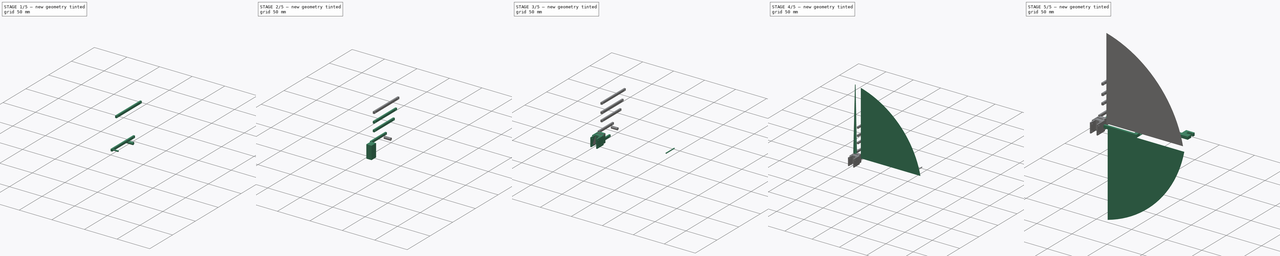
[diagram: build sequence overview — one tinted view per stage of 5, left to right]
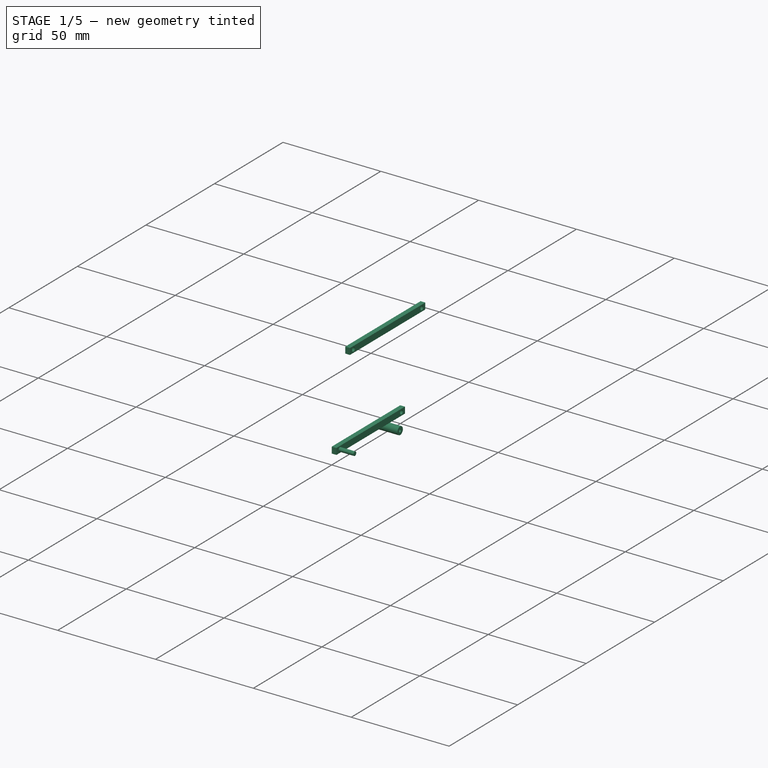
[diagram: stage 1 of 5 — iso view after this stage's code; geometry added in this stage tinted green]
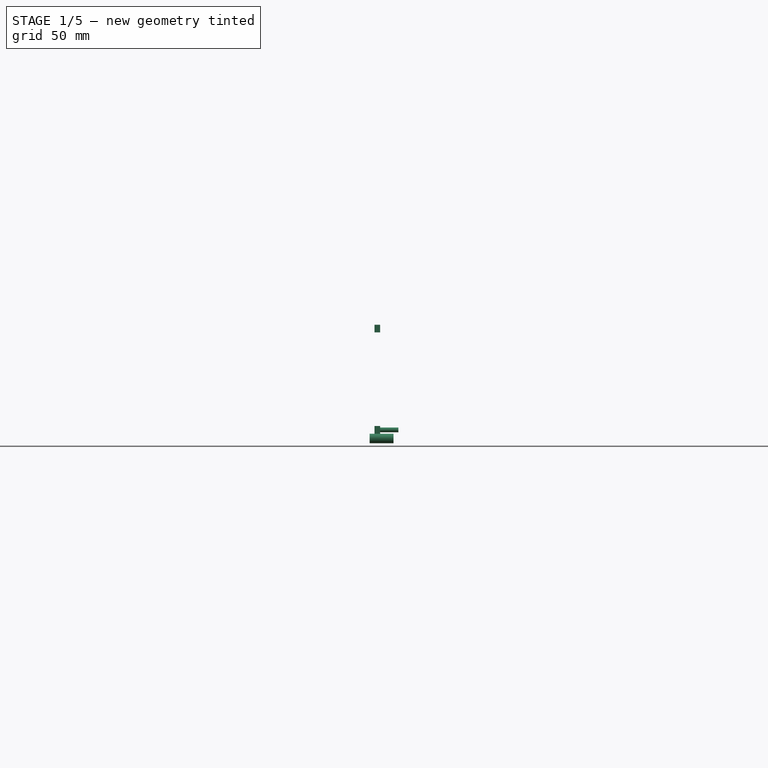
[diagram: stage 1 of 5 — front view after this stage's code; geometry added in this stage tinted green]
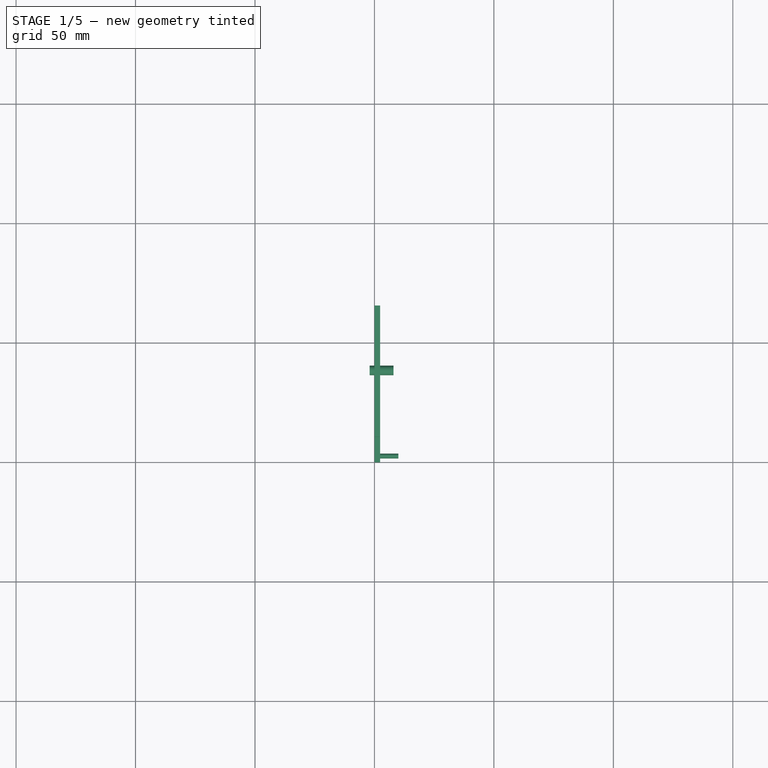
[diagram: stage 1 of 5 — top view after this stage's code; geometry added in this stage tinted green]
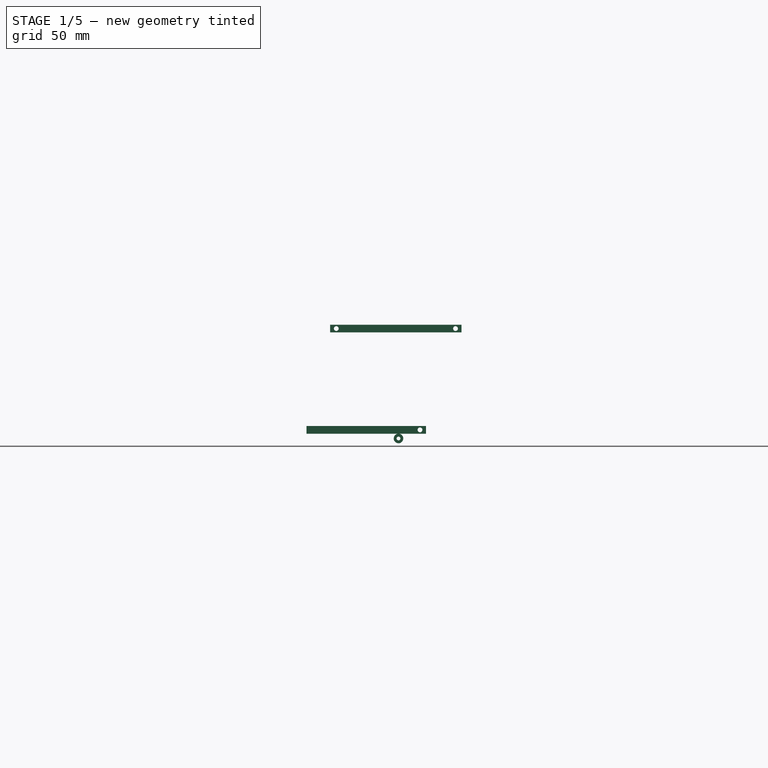
[diagram: stage 1 of 5 — right view after this stage's code; geometry added in this stage tinted green]
FCSTD DOCUMENT  (FreeCAD 0.21R33675 (Git))
Label: stem
License: All rights reserved
LicenseURL: http://en.wikipedia.org/wiki/All_rights_reserved
objects: Part::Cut×24, Part::Cylinder×22, Part::Box×7, Sketcher::SketchObject×5, PartDesign::Body×5, PartDesign::Pad×4, Part::Cone×2, Part::Fuse×2
note: 75 computed .brp shape members not serialized (recipe doc carries the construction recipe); baked Part::Feature solids carry a one-line shape summary decoded from their .brp

FEATURE [Part::Box] Box007  label="Cube007"
  AttacherType = Attacher::AttachEngine3D
  Height = 3.2
  Length = 2.4
  Width = 50
FEATURE [Part::Cylinder] Cylinder021  label="lowerhole001"
  Angle = 360
  AttacherType = Attacher::AttachEngine3D
  FirstAngle = 0
  Height = 10
  Placement = pos=(-1,47.5,1.6) rot=(0,1,0;1.5708rad)
  Radius = 1
  SecondAngle = 0
FEATURE [Part::Cut] Cut026
  Base = -> Box007
  Tool = -> Cylinder021
FEATURE [Part::Cylinder] Cylinder022  label="upperhole001"
  Angle = 360
  AttacherType = Attacher::AttachEngine3D
  FirstAngle = 0
  Height = 10
  Placement = pos=(0,2.6,1.6) rot=(0,1,0;1.5708rad)
  Radius = 1
  SecondAngle = 0
FEATURE [Part::Box] Box008  label="Cube008"
  AttacherType = Attacher::AttachEngine3D
  Height = 3.2
  Length = 2.4
  Width = 55
FEATURE [Part::Cylinder] Cylinder023  label="lowerhole002"
  Angle = 360
  AttacherType = Attacher::AttachEngine3D
  FirstAngle = 0
  Height = 10
  Placement = pos=(-1,52.5,1.6) rot=(0,1,0;1.5708rad)
  Radius = 1
  SecondAngle = 0
FEATURE [Part::Cut] Cut028
  Base = -> Box008
  Tool = -> Cylinder023
FEATURE [Part::Cylinder] Cylinder024  label="upperhole002"
  Angle = 360
  AttacherType = Attacher::AttachEngine3D
  FirstAngle = 0
  Height = 10
  Placement = pos=(0,2.6,1.6) rot=(0,1,0;1.5708rad)
  Radius = 1
  SecondAngle = 0
FEATURE [Part::Cut] Cut029  label="crank-pison-xxl"
  Base = -> Cut028
  Placement = pos=(0,9.86,42.41) rot=(0,0,1;0rad)
  Tool = -> Cylinder024
FEATURE [Part::Cylinder] Cylinder027  label="crank-flange"
  Angle = 360
  AttacherType = Attacher::AttachEngine3D
  FirstAngle = 0
  Height = 10
  Placement = pos=(8,38.5,-2) rot=(0,-1,0;1.5708rad)
  Radius = 2
  SecondAngle = 0
FEATURE [Part::Cylinder] Cylinder028  label="crank-lange-hole"
  Angle = 360
  AttacherType = Attacher::AttachEngine3D
  FirstAngle = 0
  Height = 24
  Placement = pos=(16.66,38.5,-2) rot=(0,-1,0;1.5708rad)
  Radius = 0.8
  SecondAngle = 0
FEATURE [Part::Cut] Cut032  label="crank-flange001"
  Base = -> Cylinder027
  Tool = -> Cylinder028
FEATURE [Sketcher::SketchObject] Sketch006
  FullyConstrained = true
  MapMode = 5
  Placement = pos=(0,0,0) rot=(1,0,0;1.5708rad)
  Support = -> [XZ_Plane006]
FEATURE [PartDesign::Body] Body006  label="Body"
  Group = -> [Sketch006]
  Origin = -> Origin006
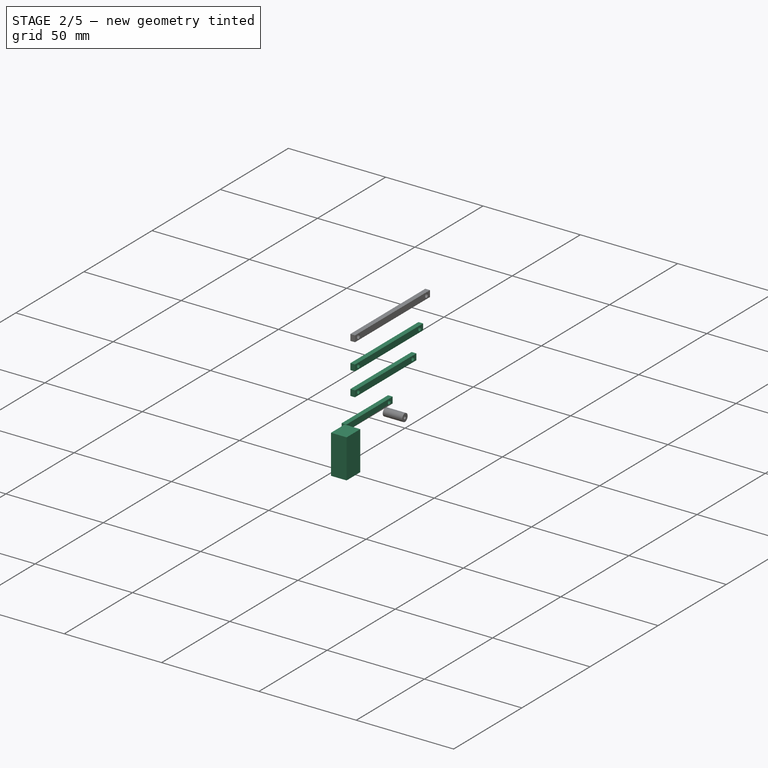
[diagram: stage 2 of 5 — iso view after this stage's code; geometry added in this stage tinted green]
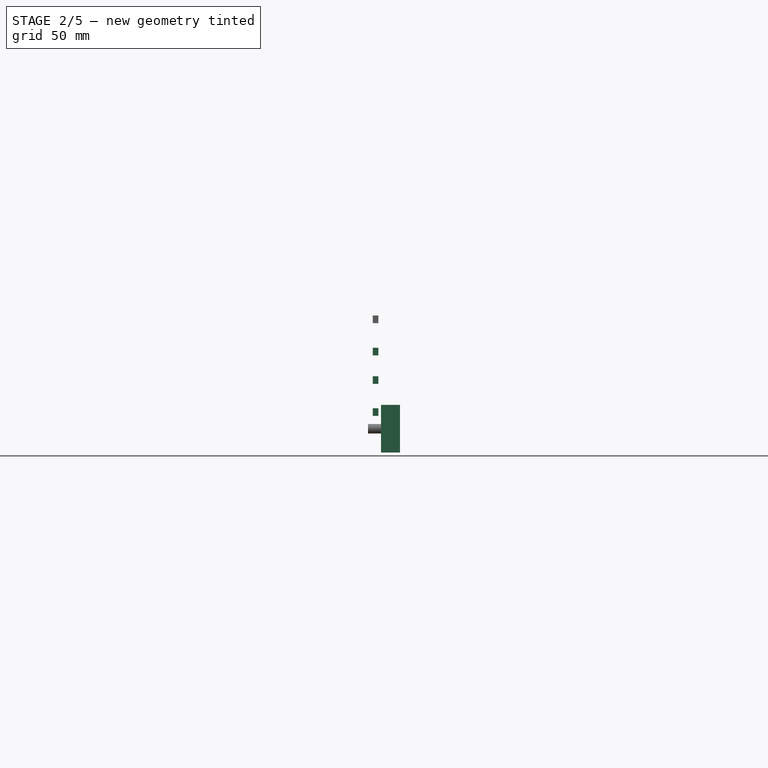
[diagram: stage 2 of 5 — front view after this stage's code; geometry added in this stage tinted green]
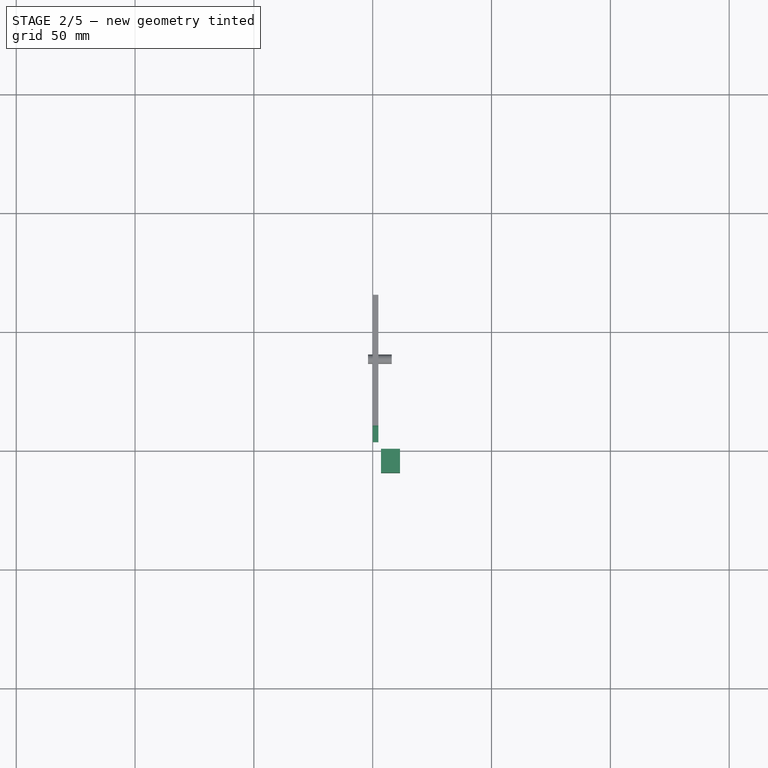
[diagram: stage 2 of 5 — top view after this stage's code; geometry added in this stage tinted green]
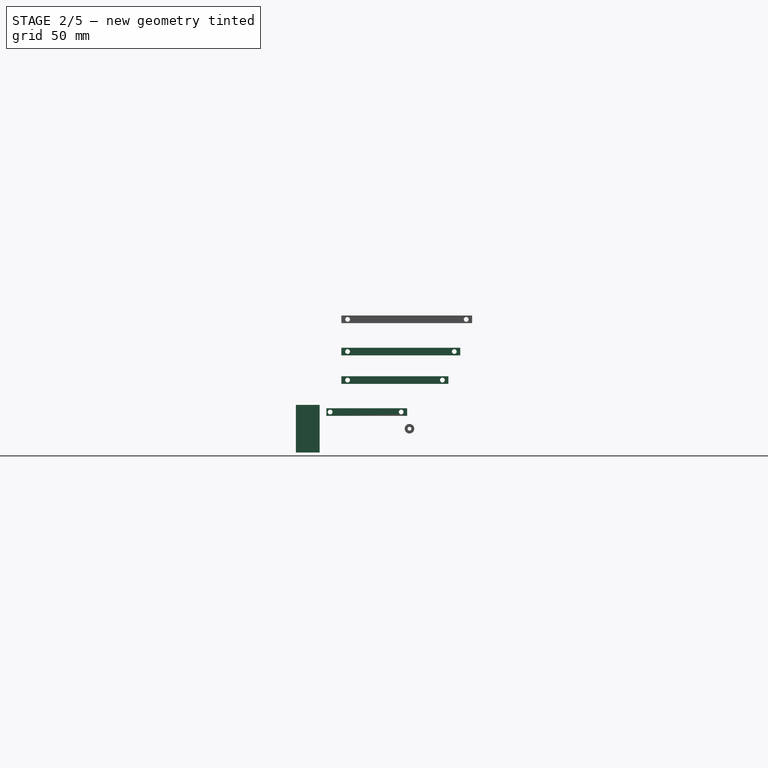
[diagram: stage 2 of 5 — right view after this stage's code; geometry added in this stage tinted green]
FEATURE [Part::Box] Box003  label="Cube003"
  AttacherType = Attacher::AttachEngine3D
  Height = 20
  Length = 8
  Placement = pos=(3.5,-9.3,-11.99) rot=(0,0,1;0rad)
  Width = 10
FEATURE [Part::Box] Box005  label="Cube005"
  AttacherType = Attacher::AttachEngine3D
  Height = 3.2
  Length = 2.4
  Width = 34
FEATURE [Part::Cylinder] Cylinder017
  Angle = 360
  AttacherType = Attacher::AttachEngine3D
  FirstAngle = 0
  Height = 10
  Placement = pos=(-1,31.5,1.6) rot=(0,1,0;1.5708rad)
  Radius = 1
  SecondAngle = 0
FEATURE [Part::Cut] Cut022
  Base = -> Box005
  Tool = -> Cylinder017
FEATURE [Part::Cylinder] Cylinder018
  Angle = 360
  AttacherType = Attacher::AttachEngine3D
  FirstAngle = 0
  Height = 10
  Placement = pos=(0,1.6,1.6) rot=(0,1,0;1.5708rad)
  Radius = 1
  SecondAngle = 0
FEATURE [Part::Cut] Cut023  label="crank-pison-med"
  Base = -> Cut022
  Placement = pos=(0,3.51,3.41) rot=(0,0,1;0rad)
  Tool = -> Cylinder018
FEATURE [Part::Box] Box006  label="Cube006"
  AttacherType = Attacher::AttachEngine3D
  Height = 3.2
  Length = 2.4
  Width = 45
FEATURE [Part::Cylinder] Cylinder019  label="lowerhole"
  Angle = 360
  AttacherType = Attacher::AttachEngine3D
  FirstAngle = 0
  Height = 10
  Placement = pos=(-1,42.5,1.6) rot=(0,1,0;1.5708rad)
  Radius = 1
  SecondAngle = 0
FEATURE [Part::Cut] Cut024
  Base = -> Box006
  Tool = -> Cylinder019
FEATURE [Part::Cylinder] Cylinder020  label="upperhole"
  Angle = 360
  AttacherType = Attacher::AttachEngine3D
  FirstAngle = 0
  Height = 10
  Placement = pos=(0,2.6,1.6) rot=(0,1,0;1.5708rad)
  Radius = 1
  SecondAngle = 0
FEATURE [Part::Cut] Cut025  label="crank-pison-lg"
  Base = -> Cut024
  Placement = pos=(0,9.86,16.86) rot=(0,0,1;0rad)
  Tool = -> Cylinder020
FEATURE [Part::Cut] Cut027  label="crank-pison-xl"
  Base = -> Cut026
  Placement = pos=(0,9.86,28.86) rot=(0,0,1;0rad)
  Tool = -> Cylinder022
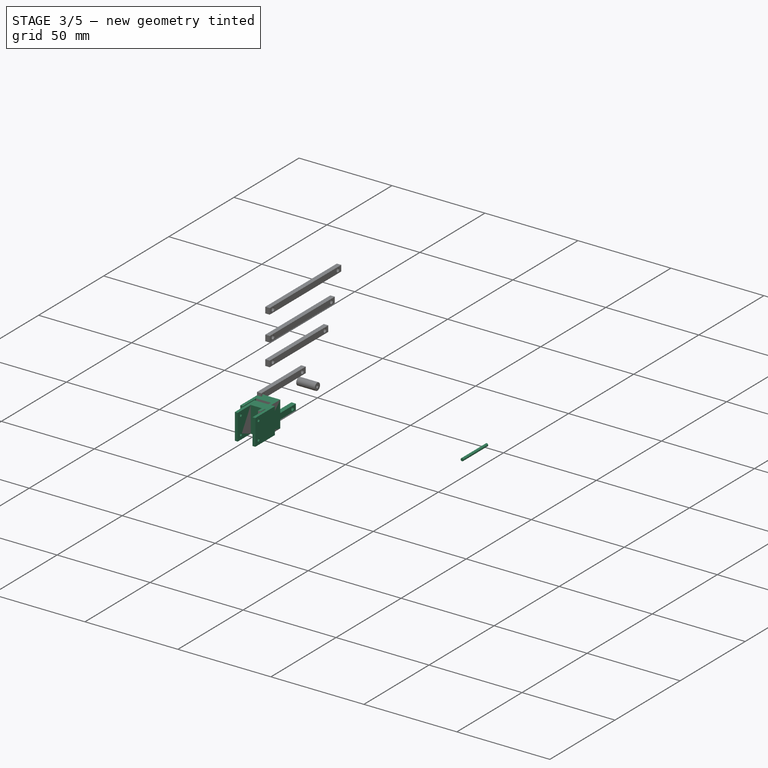
[diagram: stage 3 of 5 — iso view after this stage's code; geometry added in this stage tinted green]
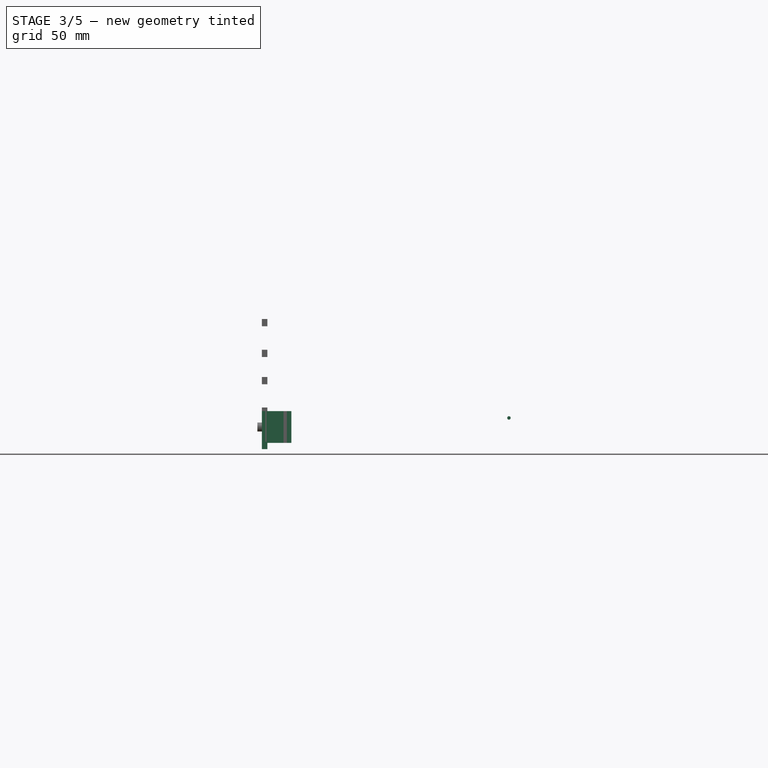
[diagram: stage 3 of 5 — front view after this stage's code; geometry added in this stage tinted green]
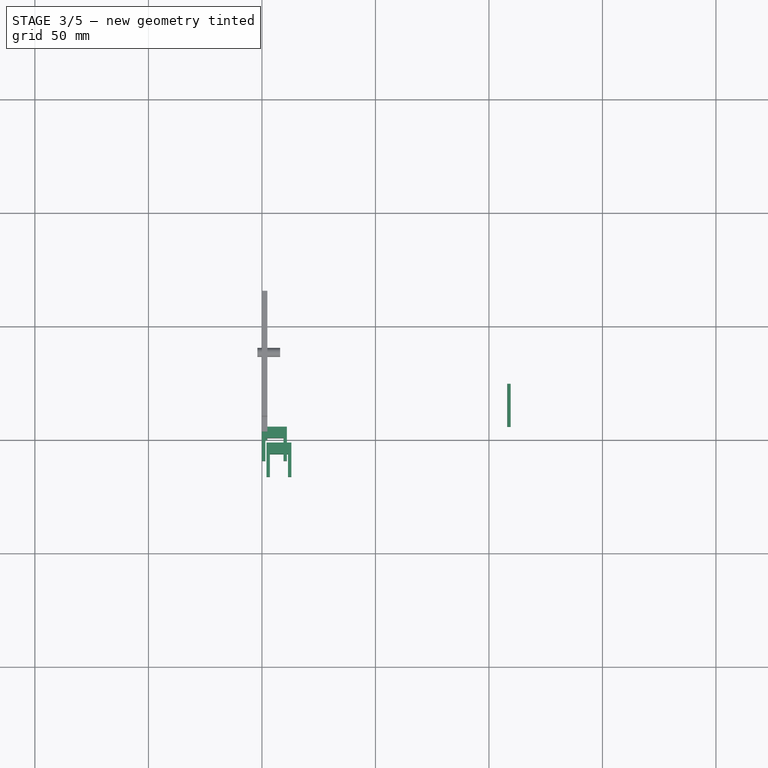
[diagram: stage 3 of 5 — top view after this stage's code; geometry added in this stage tinted green]
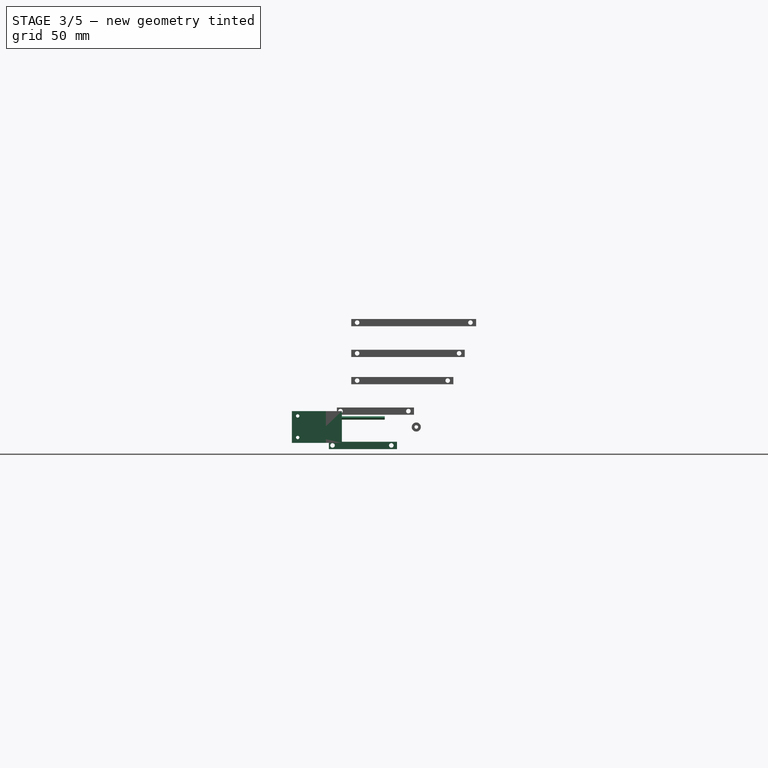
[diagram: stage 3 of 5 — right view after this stage's code; geometry added in this stage tinted green]
FEATURE [Part::Box] Box  label="Cube"
  AttacherType = Attacher::AttachEngine3D
  Height = 14
  Length = 11
  Placement = pos=(2,35,7) rot=(1,0,0;3.14159rad)
  Width = 15
FEATURE [Part::Cylinder] Cylinder009
  Angle = 360
  AttacherType = Attacher::AttachEngine3D
  FirstAngle = 0
  Height = 20
  Placement = pos=(16.82,32.44,-4.86) rot=(0,-1,0;1.5708rad)
  Radius = 0.75
  SecondAngle = 0
FEATURE [Part::Cylinder] Cylinder010
  Angle = 360
  AttacherType = Attacher::AttachEngine3D
  FirstAngle = 0
  Height = 20
  Placement = pos=(14.25,32.44,4.63) rot=(0,-1,0;1.5708rad)
  Radius = 0.75
  SecondAngle = 0
FEATURE [PartDesign::Body] Body005  label="wing-starbor"
  Group = -> [Sketch005,Pad005]
  Origin = -> Origin005
  Placement = pos=(1e-15,0,-4.58) rot=(1,0,0;3.14159rad)
  Tip = -> Pad005
FEATURE [Part::Cut] Cut013
  Base = -> Box
  Tool = -> Cylinder009
FEATURE [Part::Cut] Cut014  label="wing-hinge"
  Base = -> Cut013
  Placement = pos=(7e-15,25.7,-1.99) rot=(1,0,0;3.14159rad)
  Tool = -> Cylinder010
FEATURE [Part::Box] Box002  label="Cube002"
  AttacherType = Attacher::AttachEngine3D
  Height = 3.2
  Length = 2.4
  Width = 30
FEATURE [Part::Cylinder] Cylinder015
  Angle = 360
  AttacherType = Attacher::AttachEngine3D
  FirstAngle = 0
  Height = 10
  Placement = pos=(-1,27.5,1.6) rot=(0,1,0;1.5708rad)
  Radius = 1
  SecondAngle = 0
FEATURE [Part::Cut] Cut017
  Base = -> Box002
  Tool = -> Cylinder015
FEATURE [Part::Cylinder] Cylinder016
  Angle = 360
  AttacherType = Attacher::AttachEngine3D
  FirstAngle = 0
  Height = 10
  Placement = pos=(0,1.6,1.6) rot=(0,1,0;1.5708rad)
  Radius = 1
  SecondAngle = 0
FEATURE [Part::Cut] Cut018  label="crank-pison-smaller"
  Base = -> Cut017
  Placement = pos=(0,0,-11.71) rot=(0,0,1;0rad)
  Tool = -> Cylinder016
FEATURE [Part::Cut] Cut019  label="wing-hinge001"
  Base = -> Cut014
  Placement = pos=(-2,0,0) rot=(0,0,1;0rad)
  Tool = -> Box003
FEATURE [Part::Cylinder] Cylinder007
  Angle = 360
  AttacherType = Attacher::AttachEngine3D
  FirstAngle = 0
  Height = 19
  Placement = pos=(108.8,5.62,2) rot=(0.186157,0.694747,0.694747;3.50969rad)
  Radius = 0.75
  SecondAngle = 0
FEATURE [Part::Cut] Cut020  label="wing-hinge002"
  Base = -> Cut014
  Placement = pos=(0,-7,0) rot=(0,0,1;0rad)
  Tool = -> Box003
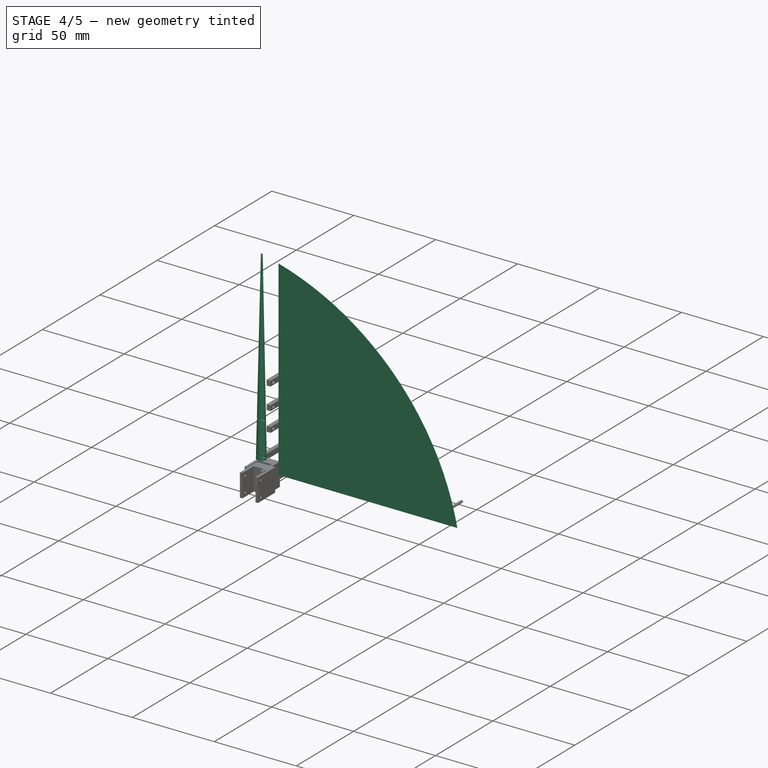
[diagram: stage 4 of 5 — iso view after this stage's code; geometry added in this stage tinted green]
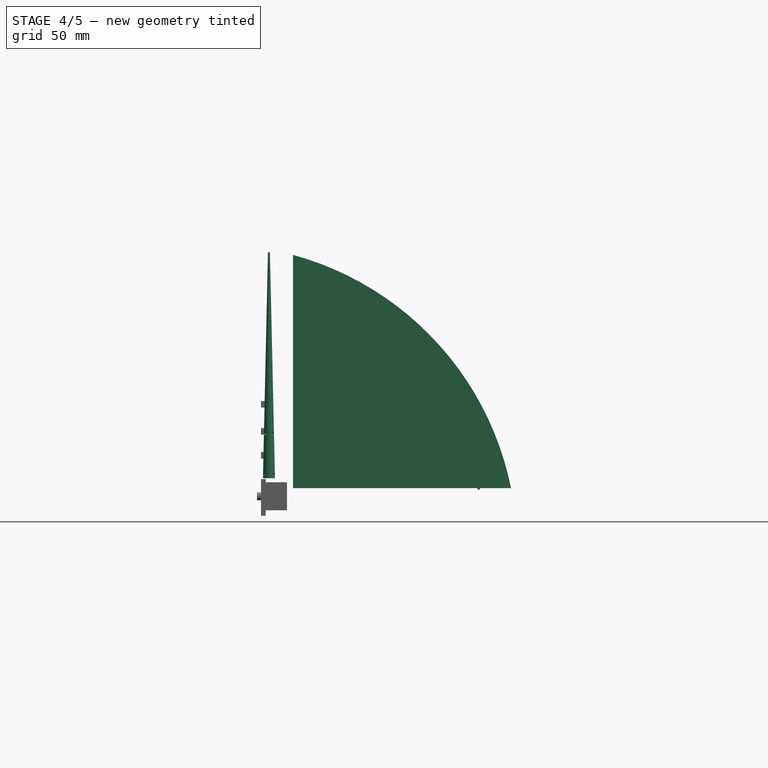
[diagram: stage 4 of 5 — front view after this stage's code; geometry added in this stage tinted green]
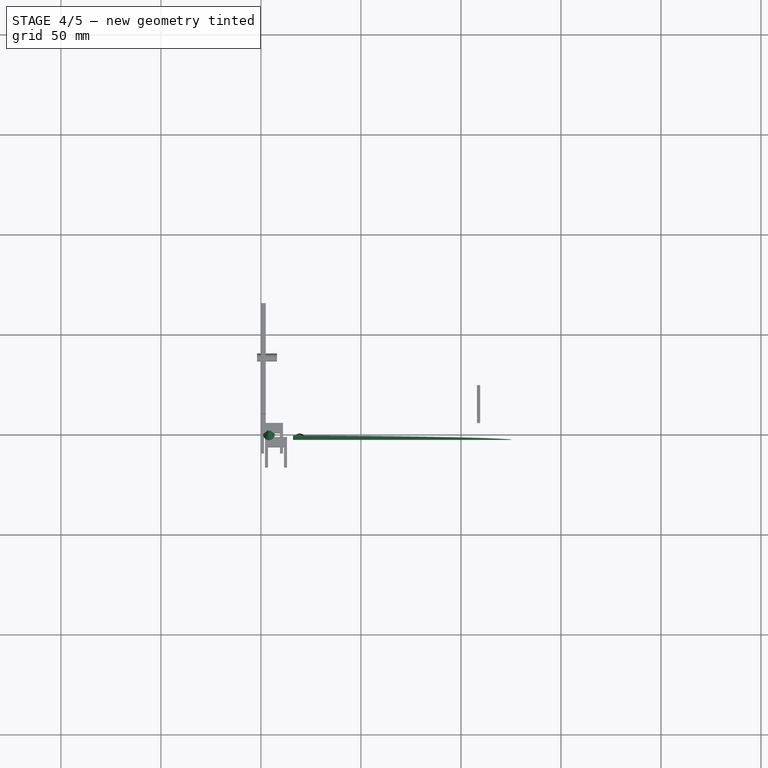
[diagram: stage 4 of 5 — top view after this stage's code; geometry added in this stage tinted green]
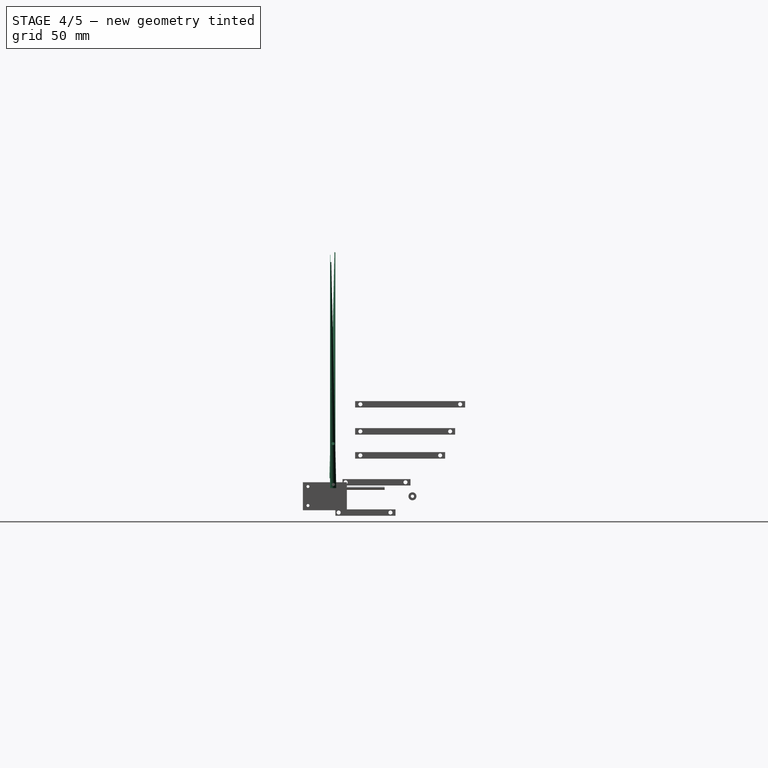
[diagram: stage 4 of 5 — right view after this stage's code; geometry added in this stage tinted green]
FEATURE [PartDesign::Body] Body004  label="wing-port"
  Group = -> [Sketch004,Pad004]
  Origin = -> Origin004
  Placement = pos=(0,0,7) rot=(0,0,1;0rad)
  Tip = -> Pad004
FEATURE [Part::Cone] Cone  label="wing-bone"
  Angle = 180
  AttacherType = Attacher::AttachEngine3D
  Height = 113
  Placement = pos=(4,1.4e-14,120) rot=(1,0,0;3.14159rad)
  Radius1 = 0.5
  Radius2 = 3
FEATURE [Part::Cylinder] Cylinder006
  Angle = 360
  AttacherType = Attacher::AttachEngine3D
  FirstAngle = 0
  Height = 10
  Placement = pos=(-2e-15,-1.4,29.28) rot=(0,1,0;1.5708rad)
  Radius = 0.75
  SecondAngle = 0
FEATURE [Part::Cut] Cut006  label="wing-bone-port"
  Base = -> Cone
  Tool = -> Cylinder006
FEATURE [Part::Cylinder] Cylinder008
  Angle = 360
  AttacherType = Attacher::AttachEngine3D
  FirstAngle = 0
  Height = 10
  Placement = pos=(7.95,-1.55,8.82) rot=(0,-1,0;1.5708rad)
  Radius = 0.75
  SecondAngle = 0
FEATURE [Part::Cut] Cut008  label="wing-bone-port001"
  Base = -> Cut006
  Tool = -> Cylinder008
FEATURE [Part::Cone] Cone001  label="wing-bone001"
  Angle = 180
  AttacherType = Attacher::AttachEngine3D
  Height = 113
  Placement = pos=(4,1.4e-14,120) rot=(1,0,0;3.14159rad)
  Radius1 = 0.5
  Radius2 = 3
FEATURE [Part::Cylinder] Cylinder011
  Angle = 360
  AttacherType = Attacher::AttachEngine3D
  FirstAngle = 0
  Height = 10
  Placement = pos=(-2e-15,-1.4,29.28) rot=(0,1,0;1.5708rad)
  Radius = 0.75
  SecondAngle = 0
FEATURE [Part::Cut] Cut011  label="wing-bone-port002"
  Base = -> Cone001
  Tool = -> Cylinder011
FEATURE [Part::Cylinder] Cylinder012
  Angle = 360
  AttacherType = Attacher::AttachEngine3D
  FirstAngle = 0
  Height = 10
  Placement = pos=(7.95,-1.55,8.82) rot=(0,-1,0;1.5708rad)
  Radius = 0.75
  SecondAngle = 0
FEATURE [Part::Cut] Cut012  label="wing-bone-starbor"
  Base = -> Cut011
  Placement = pos=(7.25,0.07,2.42) rot=(0,1,0;3.14159rad)
  Tool = -> Cylinder012
FEATURE [Sketcher::SketchObject] Sketch005
  FullyConstrained = true
  MapMode = 5
  Placement = pos=(0,0,0) rot=(1,0,0;1.5708rad)
  Support = -> [XZ_Plane005]
  sketch-geometry (3):
    g0: ArcOfCircle CenterX=-40 CenterY=-30 CenterZ=0 NormalX=0 NormalY=0 NormalZ=1 AngleXU=0 Radius=151.99 StartAngle=0.198686 EndAngle=1.30448
    g1: LineSegment StartX=1.42e-14 StartY=116.632 StartZ=0 EndX=1.42e-14 EndY=0 EndZ=0
    g2: LineSegment StartX=1.42e-14 StartY=0 StartZ=0 EndX=109 EndY=0 EndZ=0
  constraints (9):
    c: DistanceX(g-1,g0) = 109
    c: DistanceX(g0,g-1) = 40
    c: DistanceY(g0,g-1) = 30
    c: Coincident(g1,g0)
    c: Coincident(g1,g-1)
    c: Vertical(g1)
    c: Coincident(g2,g1)
    c: Coincident(g2,g0)
    c: Horizontal(g2)
FEATURE [PartDesign::Pad] Pad005
  Direction = (0,-1,2e-16)
  Length = 0.2
  Length2 = 10
  Placement = pos=(0,0,0) rot=(1,0,0;1.5708rad)
  Profile = -> Sketch005
  ReferenceAxis = -> Sketch005 [N_Axis]
  Type = 0
FEATURE [Part::Fuse] Fusion001  label="wing-starbor001"
  Base = -> Body005
  Placement = pos=(16.04,-2.52,-2.52) rot=(1,0,0;3.14159rad)
  Tool = -> Cut012
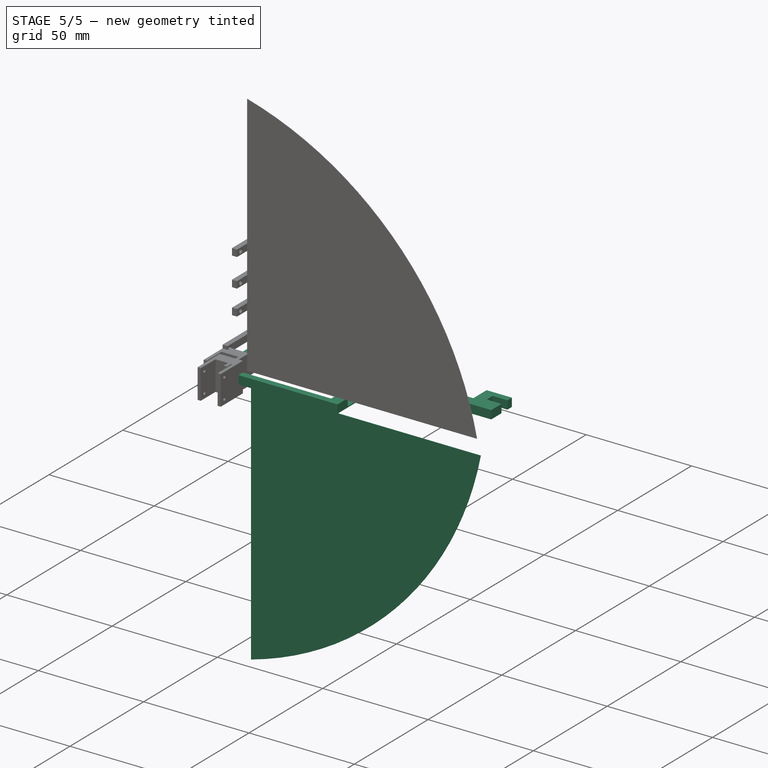
[diagram: stage 5 of 5 — iso view after this stage's code; geometry added in this stage tinted green]
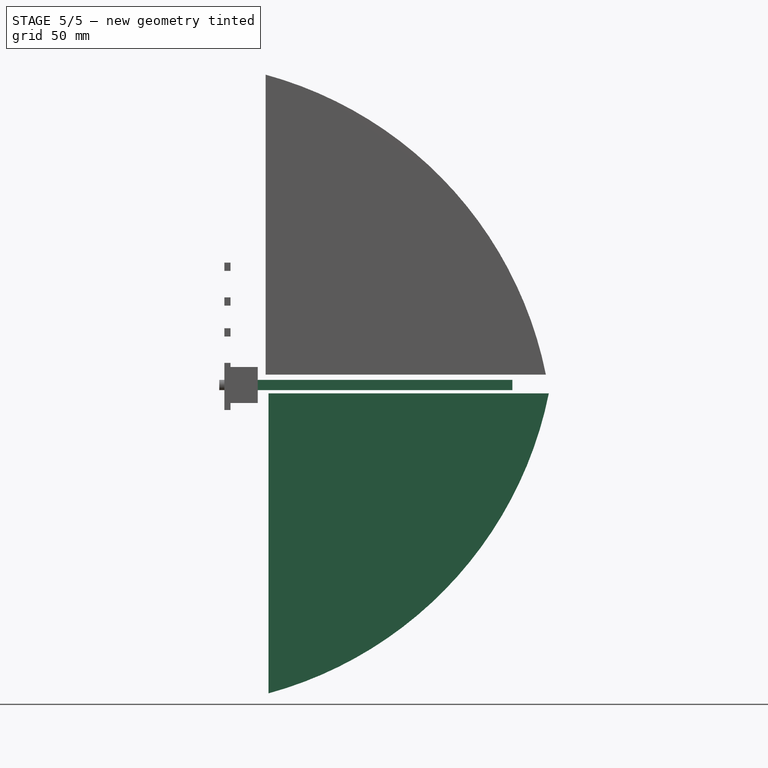
[diagram: stage 5 of 5 — front view after this stage's code; geometry added in this stage tinted green]
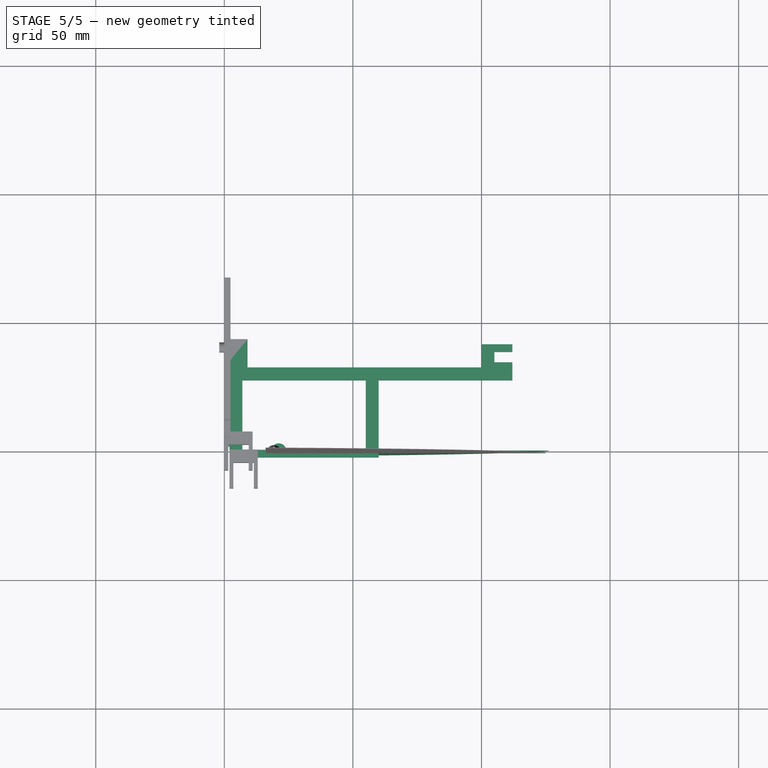
[diagram: stage 5 of 5 — top view after this stage's code; geometry added in this stage tinted green]
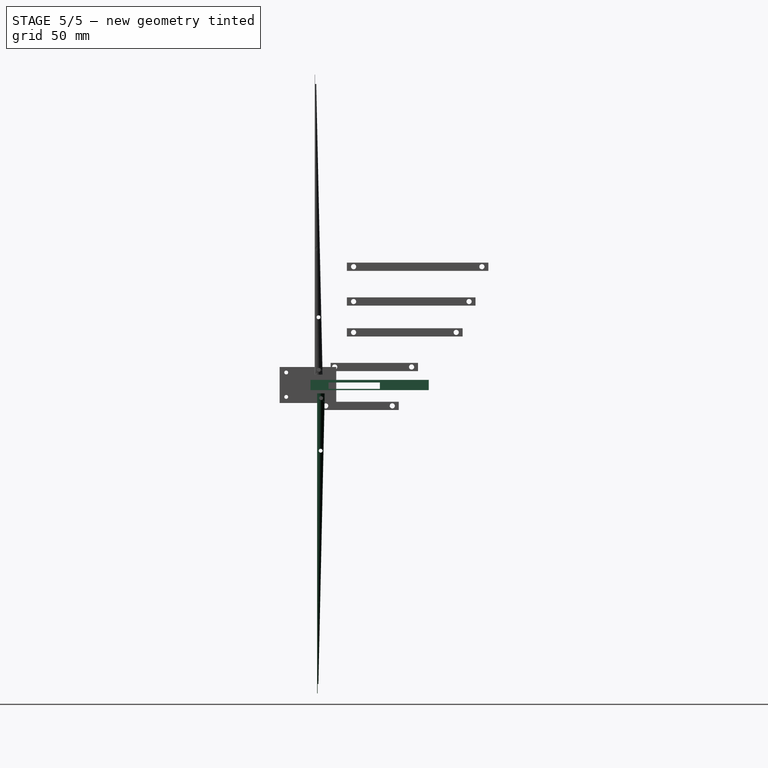
[diagram: stage 5 of 5 — right view after this stage's code; geometry added in this stage tinted green]
FEATURE [Sketcher::SketchObject] Sketch
  FullyConstrained = true
  MapMode = 5
  Support = -> [XY_Plane]
  sketch-geometry (24):
    g0: LineSegment StartX=0 StartY=0 StartZ=0 EndX=4.5e-15 EndY=5 EndZ=0
    g1: LineSegment StartX=112 StartY=5 StartZ=0 EndX=112 EndY=0 EndZ=0
    g2: LineSegment StartX=0 StartY=0 StartZ=0 EndX=0 EndY=-11 EndZ=0
    g3: LineSegment StartX=9 StartY=-11 StartZ=0 EndX=9 EndY=1.8e-15 EndZ=0
    g4: LineSegment StartX=4.5e-15 StartY=5 StartZ=0 EndX=2 EndY=5 EndZ=0
    g5: LineSegment StartX=2 StartY=5 StartZ=0 EndX=2 EndY=32 EndZ=0
    g6: LineSegment StartX=7 StartY=32 StartZ=0 EndX=7 EndY=5 EndZ=0
    g7: LineSegment StartX=7 StartY=5 StartZ=0 EndX=55 EndY=5 EndZ=0
    g8: LineSegment StartX=55 StartY=5 StartZ=0 EndX=55 EndY=32 EndZ=0
    g9: LineSegment StartX=60 StartY=32 StartZ=0 EndX=60 EndY=5 EndZ=0
    g10: LineSegment StartX=60 StartY=5 StartZ=0 EndX=112 EndY=5 EndZ=0
    g11: LineSegment StartX=2 StartY=32 StartZ=0 EndX=2 EndY=35 EndZ=0
    g12: LineSegment StartX=55 StartY=32 StartZ=0 EndX=7 EndY=32 EndZ=0
    g13: LineSegment StartX=2 StartY=35 StartZ=0 EndX=60 EndY=35 EndZ=0
    g14: LineSegment StartX=0 StartY=-11 StartZ=0 EndX=9 EndY=-11 EndZ=0
    g15: LineSegment StartX=9 StartY=1.8e-15 StartZ=0 EndX=100 EndY=0 EndZ=0
    g16: LineSegment StartX=100 StartY=0 StartZ=0 EndX=100 EndY=-9 EndZ=0
    g17: LineSegment StartX=100 StartY=-9 StartZ=0 EndX=112 EndY=-9 EndZ=0
    g18: LineSegment StartX=112 StartY=-9 StartZ=0 EndX=112 EndY=-6 EndZ=0
    g19: LineSegment StartX=112 StartY=0 StartZ=0 EndX=112 EndY=-2 EndZ=0
    g20: LineSegment StartX=112 StartY=-2 StartZ=0 EndX=105 EndY=-2 EndZ=0
    g21: LineSegment StartX=105 StartY=-2 StartZ=0 EndX=105 EndY=-6 EndZ=0
    g22: LineSegment StartX=105 StartY=-6 StartZ=0 EndX=112 EndY=-6 EndZ=0
    g23: LineSegment StartX=60 StartY=35 StartZ=0 EndX=60 EndY=32 EndZ=0
  constraints (71):
    c: Coincident(g0,g-1)
    c: Vertical(g1)
    c: DistanceX(g0,g1) = 112
    c: DistanceX(g0,g1) = 112
    c: DistanceY(g0,g0) = 5
    c: Coincident(g2,g0)
    c: Vertical(g3)
    c: DistanceX(g2,g3) = 9
    c: DistanceY(g2,g2) = 11
    c: Vertical(g2)
    c: DistanceY(g3,g3) = 11
    c: Coincident(g4,g0)
    c: Horizontal(g4)
    c: Coincident(g5,g4)
    c: Vertical(g5)
    c: Vertical(g6)
    c: Coincident(g7,g6)
    c: Horizontal(g7)
    c: Coincident(g8,g7)
    c: Vertical(g8)
    c: Vertical(g9)
    c: Coincident(g10,g9)
    c: Coincident(g10,g1)
    c: Horizontal(g10)
    c: DistanceY(g6,g6) = 27
    c: DistanceY(g9,g9) = 27
    c: DistanceY(g5,g5) = 27
    c: DistanceY(g8,g8) = 27
    c: DistanceX(g4,g4) = 2
    c: DistanceX(g5,g6) = 5
    c: DistanceX(g8,g9) = 5
    c: DistanceX(g7,g7) = 48
    c: Coincident(g11,g5)
    c: Coincident(g12,g8)
    c: Vertical(g11)
    c: DistanceY(g1,g1) = 5
    c: Coincident(g12,g6)
    c: DistanceY(g-1,g6) = 5
    c: Horizontal(g13)
    c: Coincident(g13,g11)
    c: Coincident(g14,g2)
    c: Coincident(g14,g3)
    c: Horizontal(g14)
    c: Coincident(g15,g3)
    c: Coincident(g16,g15)
    c: Vertical(g16)
    c: Coincident(g17,g16)
    c: Horizontal(g17)
    c: Coincident(g18,g17)
    c: Coincident(g19,g1)
    c: Coincident(g20,g19)
    c: Horizontal(g20)
    c: Coincident(g21,g20)
    c: Coincident(g22,g21)
    c: Coincident(g22,g18)
    c: DistanceY(g18,g18) = 3
    c: DistanceY(g19,g19) = 2
    c: DistanceY(g21,g21) = 4
    c: DistanceY(g15,g-1) = 0
    c: Horizontal(g22)
    c: Vertical(g21)
    c: Vertical(g19)
    c: DistanceY(g-1,g1) = 5
    c: DistanceX(g-1,g15) = 100
    c: Vertical(g18)
    c: DistanceX(g-1,g21) = 105
    c: DistanceX(g-1,g17) = 112
    c: Coincident(g23,g13)
    c: Coincident(g23,g9)
    c: DistanceY(g23,g23) = 3
    c: DistanceX(g13,g13) = 58
FEATURE [PartDesign::Pad] Pad
  Direction = (0,0,1)
  Length = 4
  Length2 = 10
  Profile = -> Sketch
  ReferenceAxis = -> Sketch [N_Axis]
  Type = 0
FEATURE [PartDesign::Body] Body  label="Stem"
  Group = -> [Sketch,Pad]
  Origin = -> Origin
  Tip = -> Pad
FEATURE [Part::Cylinder] Cylinder
  Angle = 360
  AttacherType = Attacher::AttachEngine3D
  FirstAngle = 0
  Height = 40
  Placement = pos=(21,-7.8,2) rot=(0,-1,0;1.5708rad)
  Radius = 0.75
  SecondAngle = 0
FEATURE [Part::Cylinder] Cylinder003
  Angle = 360
  AttacherType = Attacher::AttachEngine3D
  FirstAngle = 0
  Height = 10
  Placement = pos=(0,37,1.03) rot=(0,1,0;1.5708rad)
  Radius = 0.75
  SecondAngle = 0
FEATURE [Part::Cylinder] Cylinder005
  Angle = 360
  AttacherType = Attacher::AttachEngine3D
  FirstAngle = 0
  Height = 10
  Placement = pos=(-0.776457,37,2.87778) rot=(0,1,0;1.5708rad)
  Radius = 0.75
  SecondAngle = 0
FEATURE [Sketcher::SketchObject] Sketch004
  FullyConstrained = true
  MapMode = 5
  Placement = pos=(0,0,0) rot=(1,0,0;1.5708rad)
  Support = -> [XZ_Plane004]
  sketch-geometry (3):
    g0: ArcOfCircle CenterX=-40 CenterY=-30 CenterZ=0 NormalX=0 NormalY=0 NormalZ=1 AngleXU=0 Radius=151.99 StartAngle=0.198686 EndAngle=1.30448
    g1: LineSegment StartX=1.42e-14 StartY=116.632 StartZ=0 EndX=1.42e-14 EndY=0 EndZ=0
    g2: LineSegment StartX=1.42e-14 StartY=0 StartZ=0 EndX=109 EndY=0 EndZ=0
  constraints (9):
    c: DistanceX(g-1,g0) = 109
    c: DistanceX(g0,g-1) = 40
    c: DistanceY(g0,g-1) = 30
    c: Coincident(g1,g0)
    c: Coincident(g1,g-1)
    c: Vertical(g1)
    c: Coincident(g2,g1)
    c: Coincident(g2,g0)
    c: Horizontal(g2)
FEATURE [PartDesign::Pad] Pad004
  Direction = (0,-1,2e-16)
  Length = 0.2
  Length2 = 10
  Placement = pos=(0,0,0) rot=(1,0,0;1.5708rad)
  Profile = -> Sketch004
  ReferenceAxis = -> Sketch004 [N_Axis]
  Type = 0
FEATURE [Sketcher::SketchObject] Sketch001
  FullyConstrained = true
  MapMode = 5
  Support = -> [XY_Plane001]
  sketch-geometry (4):
    g0: LineSegment StartX=0 StartY=28 StartZ=0 EndX=0 EndY=8 EndZ=0
    g1: LineSegment StartX=0 StartY=8 StartZ=0 EndX=70 EndY=8 EndZ=0
    g2: LineSegment StartX=70 StartY=8 StartZ=0 EndX=70 EndY=28 EndZ=0
    g3: LineSegment StartX=70 StartY=28 StartZ=0 EndX=0 EndY=28 EndZ=0
  constraints (12):
    c: Vertical(g0)
    c: Coincident(g1,g0)
    c: Horizontal(g1)
    c: Coincident(g2,g1)
    c: Vertical(g2)
    c: Coincident(g3,g2)
    c: Coincident(g3,g0)
    c: Horizontal(g3)
    c: DistanceY(g0,g0) = 20
    c: DistanceX(g-1,g0) = 0
    c: DistanceY(g-1,g0) = 8
    c: DistanceX(g-1,g1) = 70
FEATURE [PartDesign::Pad] Pad001
  Direction = (0,0,1)
  Length = 2.5
  Length2 = 10
  Profile = -> Sketch001
  ReferenceAxis = -> Sketch001 [N_Axis]
  Type = 0
FEATURE [PartDesign::Body] Body001  label="stem_cutout"
  Group = -> [Sketch001,Pad001]
  Origin = -> Origin001
  Placement = pos=(0,0,1) rot=(0,0,1;0rad)
  Tip = -> Pad001
FEATURE [Part::Cut] Cut
  Base = -> Body
  Tool = -> Body001
FEATURE [Part::Cut] Cut001
  Base = -> Cut
  Tool = -> Cylinder
FEATURE [Part::Cut] Cut004
  Base = -> Cut001
  Tool = -> Cylinder003
FEATURE [Part::Cut] Cut005
  Base = -> Cut004
  Tool = -> Cylinder005
FEATURE [Part::Fuse] Fusion  label="wing-port001"
  Base = -> Body004
  Placement = pos=(17.18,-1.74,1.73) rot=(1,0,0;3.14159rad)
  Tool = -> Cut008
FEATURE [Part::Cut] Cut007  label="stem"
  Base = -> Cut005
  Placement = pos=(0,30.7,-4e-15) rot=(1,0,0;3.14159rad)
  Tool = -> Cylinder007
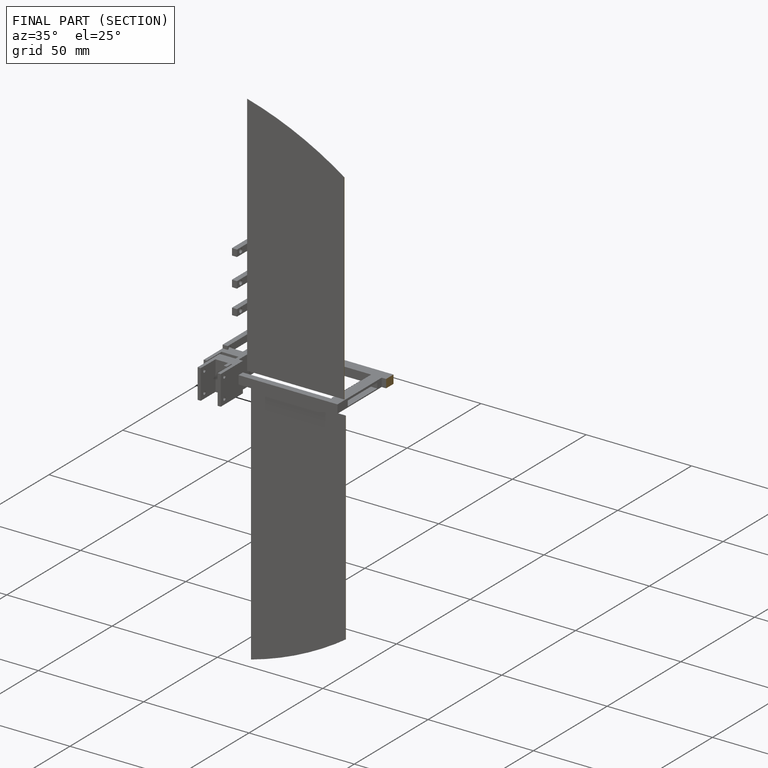
[diagram: finished part — half-section view (interior)]
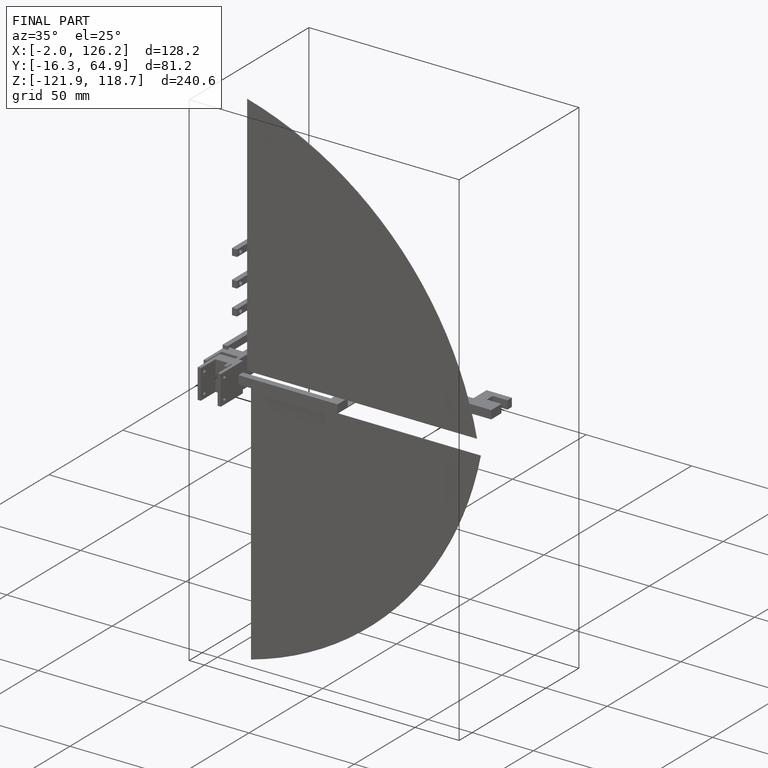
[diagram: finished part — iso view with bounding-box wireframe]
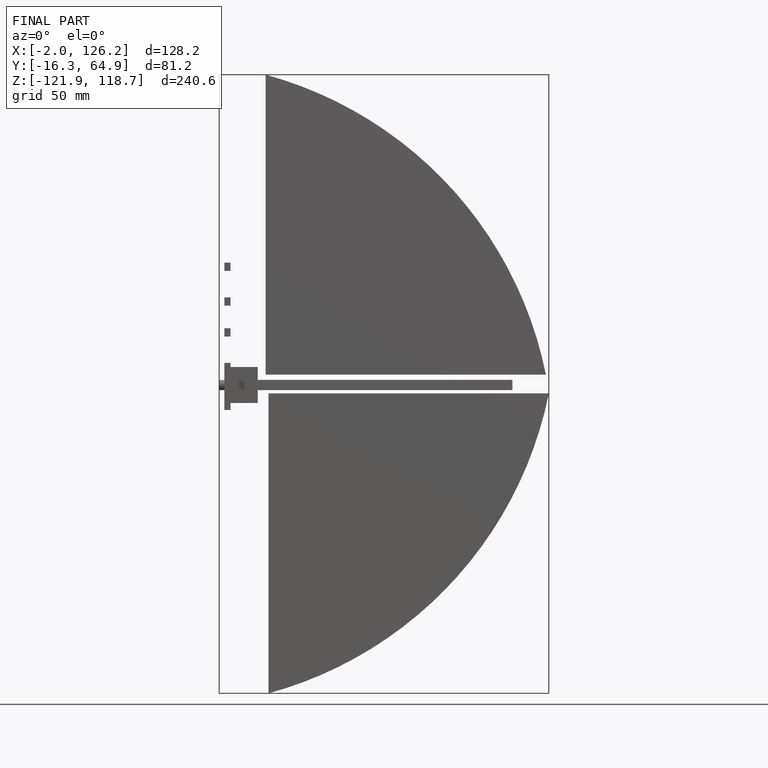
[diagram: finished part — front view with bounding-box wireframe]
